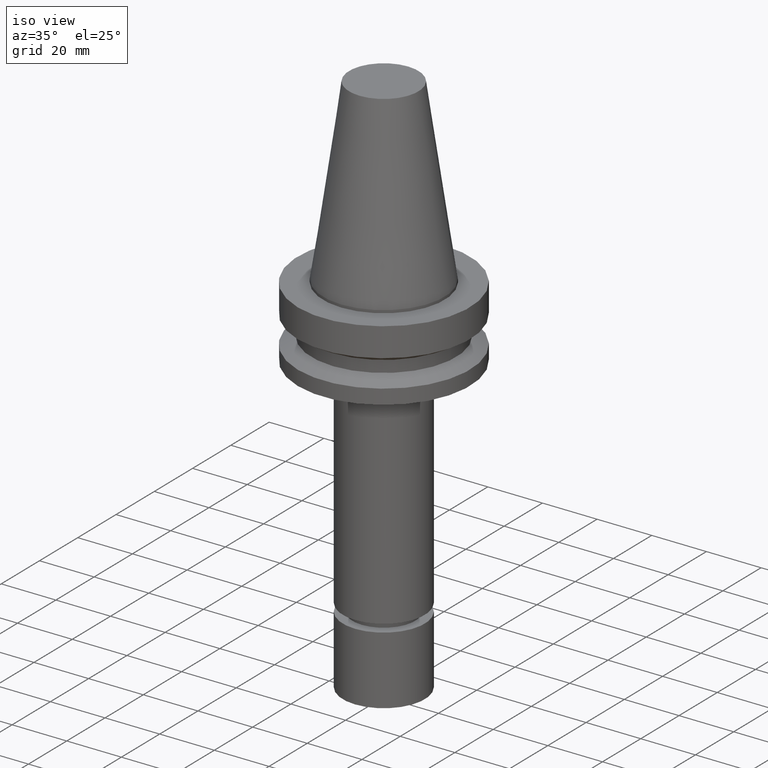
[diagram: clean part render]
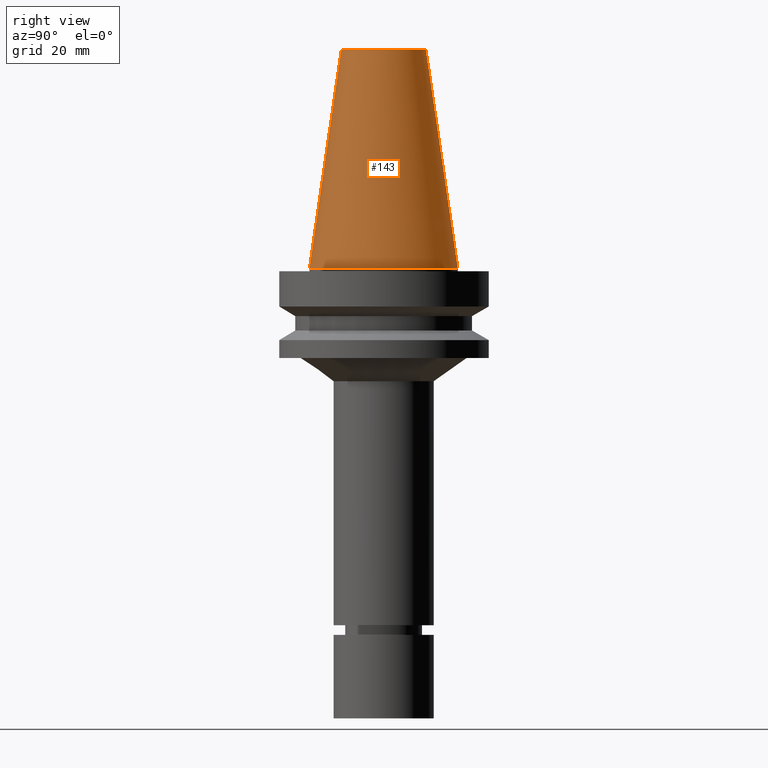
[diagram: tour spotlight — one face highlighted and labeled with its STEP entity id]
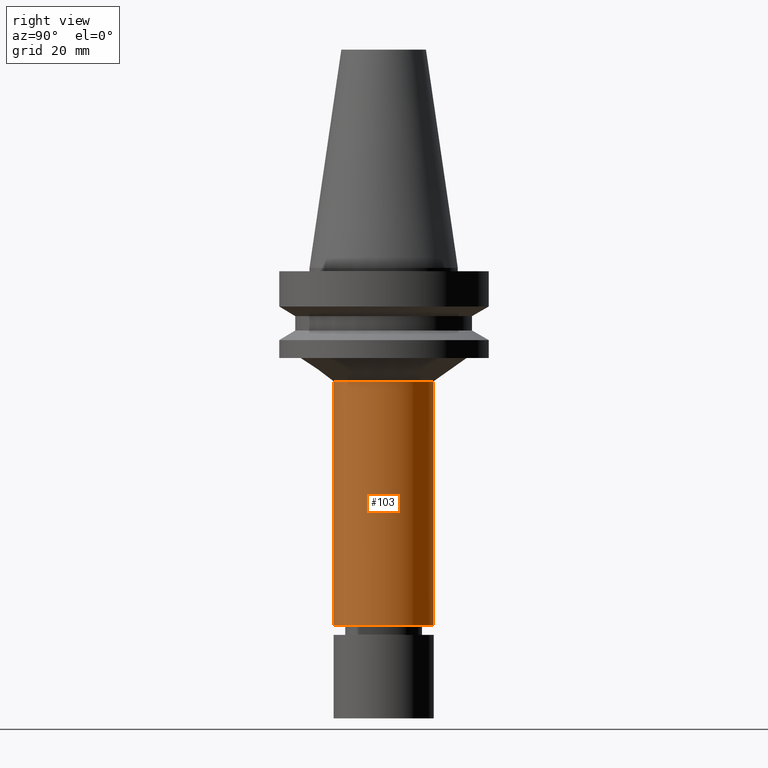
[diagram: tour spotlight — one face highlighted and labeled with its STEP entity id]
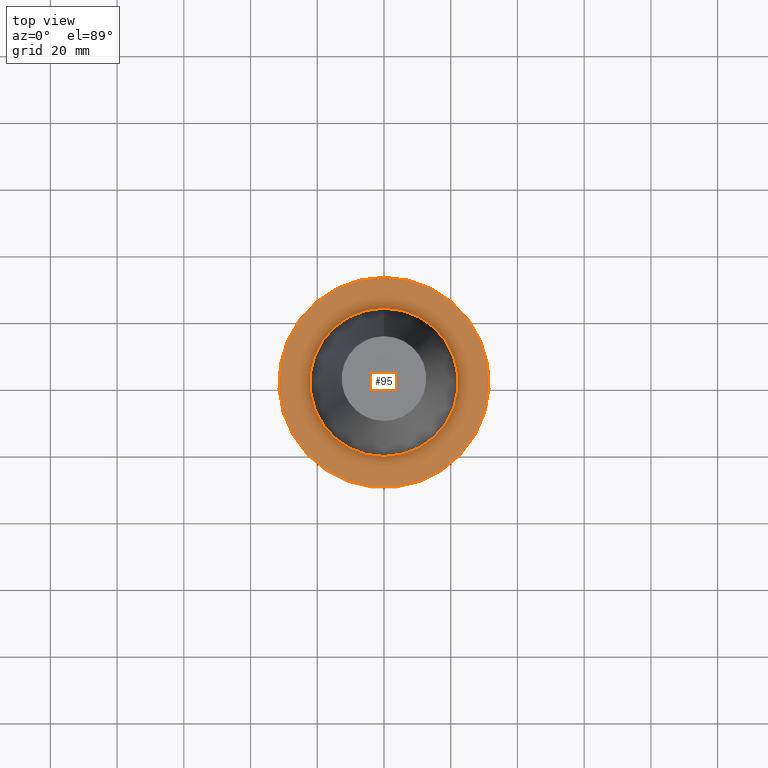
[diagram: tour spotlight — one face highlighted and labeled with its STEP entity id]
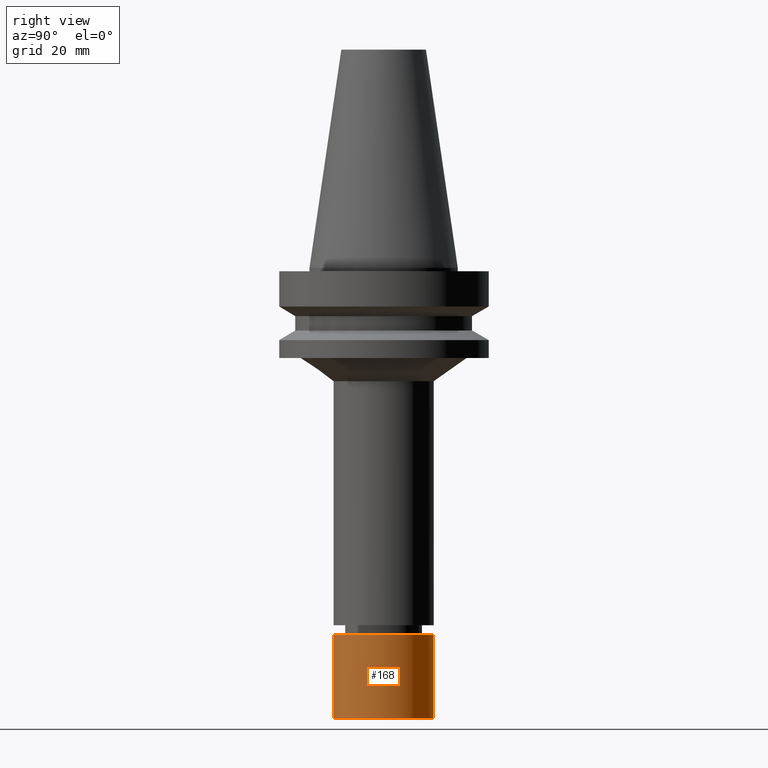
[diagram: tour spotlight — one face highlighted and labeled with its STEP entity id]
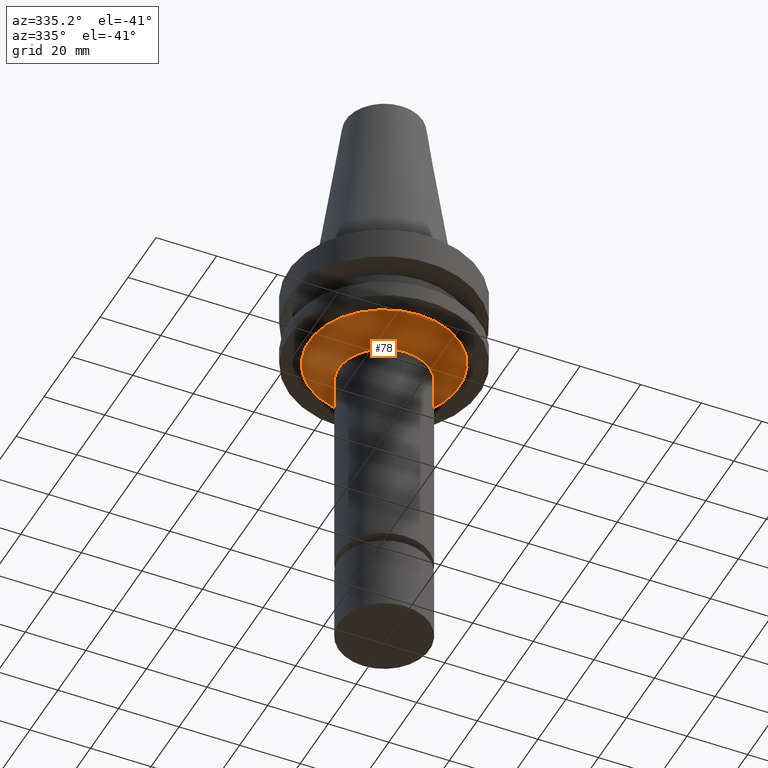
[diagram: tour spotlight — one face highlighted and labeled with its STEP entity id]
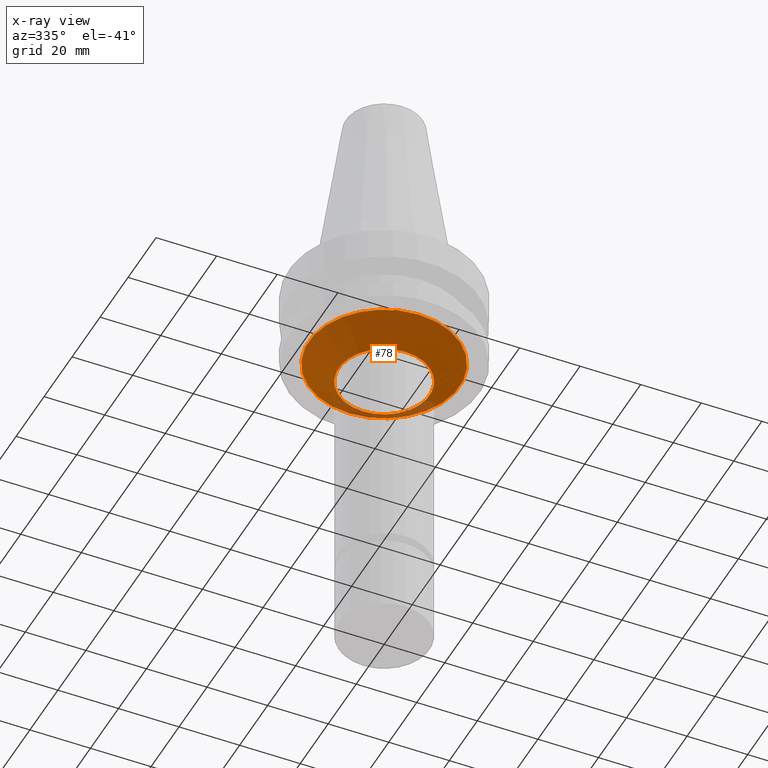
[diagram: x-ray of the same camera — body ghosted, this tour face saturated]
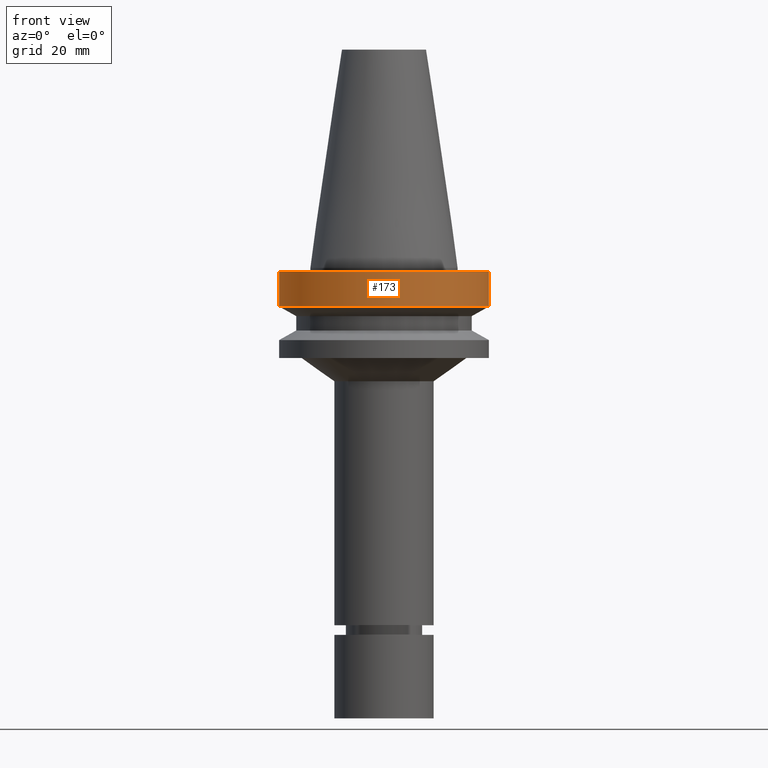
[diagram: tour spotlight — one face highlighted and labeled with its STEP entity id]
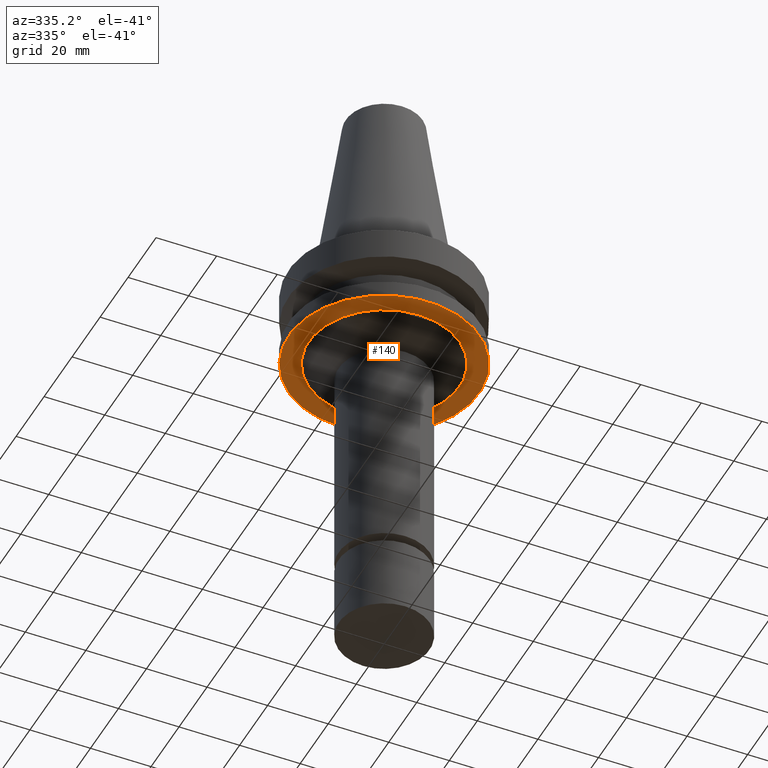
[diagram: tour spotlight — one face highlighted and labeled with its STEP entity id]
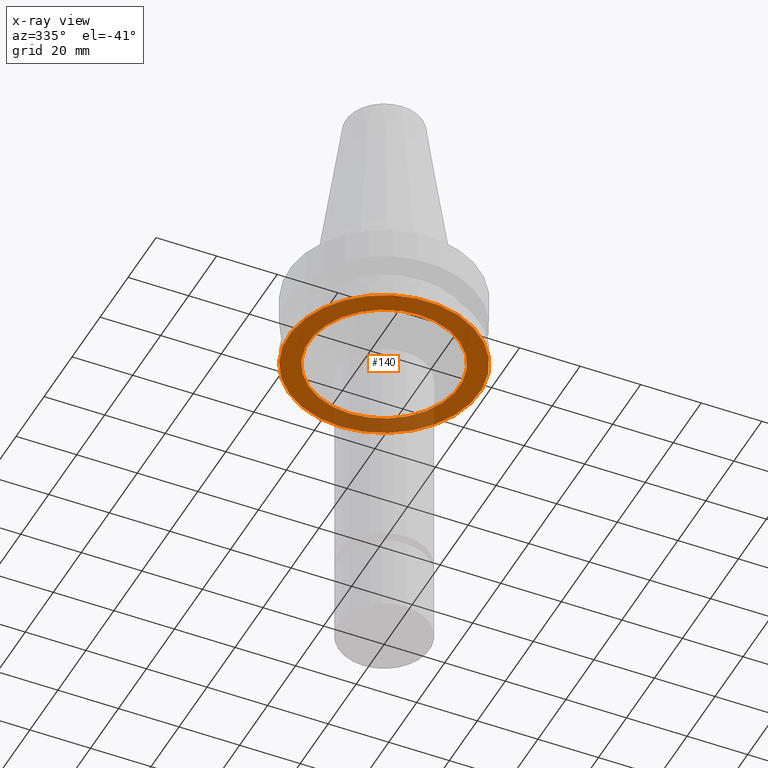
[diagram: x-ray of the same camera — body ghosted, this tour face saturated]
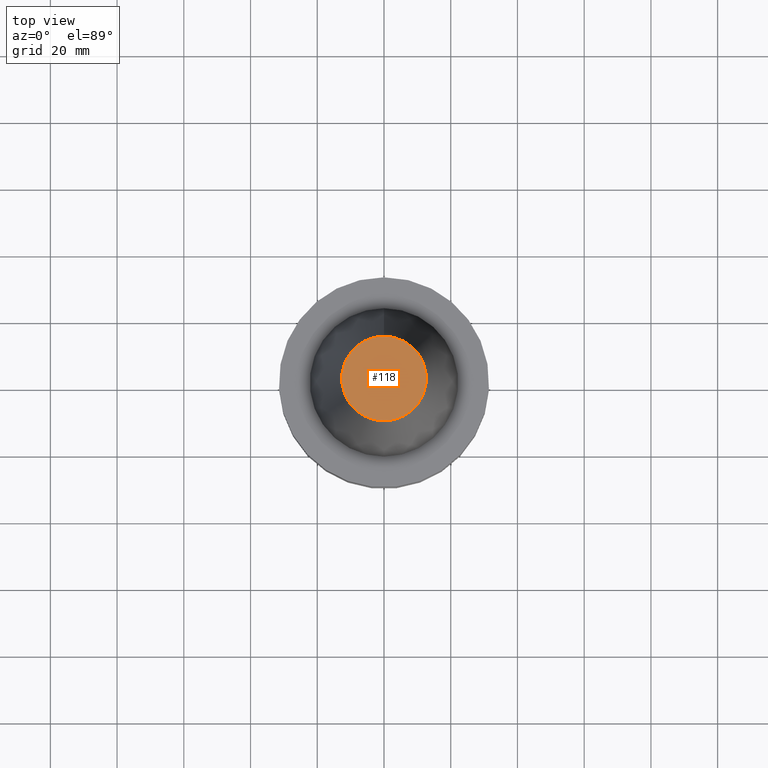
[diagram: tour spotlight — one face highlighted and labeled with its STEP entity id]
A machine part: a face-by-face anatomy tour. The part has 21 B-rep faces; the first image is the clean iso view, then the 8 largest visible faces are spotlighted one at a time (largest first), each with its STEP entity span.

Face 1 — right view, entity #143. In plain terms, the highlighted conical surface has half-angle 8.297 deg.
Definition (entity closure, byte-faithful):
#90=EDGE_CURVE('Unnamed[1]',#224,#224,#225,.T.);
#143=ADVANCED_FACE('Unnamed[1]',(#303,#304),#305,.T.);
#145=EDGE_CURVE('Unnamed[1]',#307,#307,#308,.T.);
#224=VERTEX_POINT('',#406);
#225=CIRCLE('',#407,12.6875000000001);
#303=FACE_BOUND('',#503,.T.);
#304=FACE_BOUND('',#504,.T.);
#305=CONICAL_SURFACE('',#505,17.45625,0.144812498238936);
#307=VERTEX_POINT('',#508);
#308=CIRCLE('',#509,22.225);
#406=CARTESIAN_POINT('',(-4.00459503321185E-015,12.6875000000002,65.4000000000001));
#407=AXIS2_PLACEMENT_3D('',#606,#607,#608);
#503=EDGE_LOOP('',(#691));
#504=EDGE_LOOP('',(#692));
#505=AXIS2_PLACEMENT_3D('',#693,#694,#695);
#508=CARTESIAN_POINT('',(1.71319921032766E-029,22.2250000000001,-2.8153873565375E-013));
#509=AXIS2_PLACEMENT_3D('',#696,#697,#698);
#606=CARTESIAN_POINT('',(-4.00459503321185E-015,7.70742188944467E-014,65.4000000000001));
#607=DIRECTION('',(6.12323399573677E-017,-9.41263592148422E-017,-1.0));
#608=DIRECTION('',(9.36424495623502E-034,1.0,-9.41263592148422E-017));
#691=ORIENTED_EDGE('',*,*,#145,.F.);
#692=ORIENTED_EDGE('',*,*,#90,.T.);
#693=CARTESIAN_POINT('',(-2.00229751660592E-015,7.39962869481213E-014,32.6999999999999));
#694=DIRECTION('',(6.12323399573677E-017,-9.41263592148422E-017,-1.0));
#695=DIRECTION('',(9.36424495623503E-034,1.0,-9.41263592148422E-017));
#696=CARTESIAN_POINT('',(1.74032777401202E-029,7.0918355001796E-014,-2.8421709430404E-013));
#697=DIRECTION('',(6.12323399573677E-017,-9.41263592148422E-017,-1.0));
#698=DIRECTION('',(9.36424495623503E-034,1.0,-9.41263592148422E-017));

Face 2 — right view, entity #103. In plain terms, the highlighted cylindrical surface (bore or boss wall) has radius 15 mm, axis along (0, -0, -1).
Definition (entity closure, byte-faithful):
#80=EDGE_CURVE('Unnamed[1]',#209,#209,#210,.T.);
#103=ADVANCED_FACE('Unnamed[1]',(#242,#243),#244,.T.);
#152=EDGE_CURVE('Unnamed[1]',#318,#318,#319,.T.);
#209=VERTEX_POINT('',#387);
#210=CIRCLE('',#388,15.0000000000004);
#242=FACE_BOUND('',#428,.T.);
#243=FACE_BOUND('',#429,.T.);
#244=CYLINDRICAL_SURFACE('',#430,15.0000000000002);
#318=VERTEX_POINT('',#522);
#319=CIRCLE('',#523,15.0);
#387=CARTESIAN_POINT('',(2.07973442388956E-015,15.0000000000005,-33.9646406676204));
#388=AXIS2_PLACEMENT_3D('',#589,#590,#591);
#428=EDGE_LOOP('',(#623));
#429=EDGE_LOOP('',(#624));
#430=AXIS2_PLACEMENT_3D('',#625,#626,#627);
#522=CARTESIAN_POINT('',(6.55798360943403E-015,15.0000000000001,-107.099999999999));
#523=AXIS2_PLACEMENT_3D('',#708,#709,#710);
#589=CARTESIAN_POINT('',(2.07973442388956E-015,6.77213870337125E-014,-33.9646406676204));
#590=DIRECTION('',(6.12323399573677E-017,-9.41263592148422E-017,-1.0));
#591=DIRECTION('',(9.36424495623503E-034,1.0,-9.41263592148422E-017));
#623=ORIENTED_EDGE('',*,*,#152,.F.);
#624=ORIENTED_EDGE('',*,*,#80,.T.);
#625=CARTESIAN_POINT('',(4.3188590166618E-015,6.42794044817995E-014,-70.5323203338098));
#626=DIRECTION('',(6.12323399573677E-017,-9.41263592148422E-017,-1.0));
#627=DIRECTION('',(9.364244956235E-034,1.0,-9.41263592148422E-017));
#708=CARTESIAN_POINT('',(6.55798360943403E-015,6.08374219298865E-014,-107.099999999999));
#709=DIRECTION('',(6.12323399573677E-017,-9.41263592148422E-017,-1.0));
#710=DIRECTION('',(9.36424495623502E-034,1.0,-9.41263592148422E-017));

Face 3 — top view, entity #95. In plain terms, the highlighted planar face has unit normal (-0, -0, 1).
Definition (entity closure, byte-faithful):
#75=EDGE_CURVE('Unnamed[1]',#201,#201,#202,.T.);
#95=ADVANCED_FACE('Unnamed[1]',(#231,#232),#233,.T.);
#178=EDGE_CURVE('Unnamed[1]',#359,#359,#360,.T.);
#201=VERTEX_POINT('',#377);
#202=CIRCLE('',#378,22.225);
#231=FACE_OUTER_BOUND('',#415,.T.);
#232=FACE_BOUND('',#416,.T.);
#233=PLANE('',#417);
#359=VERTEX_POINT('',#573);
#360=CIRCLE('',#574,31.4999999999996);
#377=CARTESIAN_POINT('',(6.12323399573622E-017,22.2250000000001,-0.999999999999912));
#378=AXIS2_PLACEMENT_3D('',#580,#581,#582);
#415=EDGE_LOOP('',(#613));
#416=EDGE_LOOP('',(#614));
#417=AXIS2_PLACEMENT_3D('',#615,#616,#617);
#573=CARTESIAN_POINT('',(6.12323399573568E-017,31.4999999999997,-0.999999999999825));
#574=AXIS2_PLACEMENT_3D('',#755,#756,#757);
#580=CARTESIAN_POINT('',(6.12323399573624E-017,7.08242286425812E-014,-0.999999999999915));
#581=DIRECTION('',(6.12323399573677E-017,-9.41263592148422E-017,-1.0));
#582=DIRECTION('',(9.36424495623503E-034,1.0,-9.41263592148422E-017));
#613=ORIENTED_EDGE('',*,*,#178,.F.);
#614=ORIENTED_EDGE('',*,*,#75,.T.);
#615=CARTESIAN_POINT('',(6.12323399573595E-017,26.8624999999999,-0.999999999999869));
#616=DIRECTION('',(-6.12323399573677E-017,-9.35138060429241E-015,1.0));
#617=DIRECTION('',(5.77434068963536E-031,-1.0,-9.35138060429241E-015));
#755=CARTESIAN_POINT('',(6.12323399573572E-017,7.08242286425812E-014,-0.999999999999829));
#756=DIRECTION('',(6.12323399573677E-017,-9.41263592148422E-017,-1.0));
#757=DIRECTION('',(9.36424495623503E-034,1.0,-9.41263592148422E-017));

Face 4 — right view, entity #168. In plain terms, the highlighted cylindrical surface (bore or boss wall) has radius 15 mm, axis along (0, -0, -1).
Definition (entity closure, byte-faithful):
#137=EDGE_CURVE('Unnamed[1]',#294,#294,#295,.T.);
#150=EDGE_CURVE('Unnamed[1]',#315,#315,#316,.T.);
#168=ADVANCED_FACE('Unnamed[1]',(#342,#343),#344,.T.);
#294=VERTEX_POINT('',#492);
#295=CIRCLE('',#493,14.9999999999999);
#315=VERTEX_POINT('',#518);
#316=CIRCLE('',#519,15.0);
#342=FACE_BOUND('',#552,.T.);
#343=FACE_BOUND('',#553,.T.);
#344=CYLINDRICAL_SURFACE('',#554,14.9999999999999);
#492=CARTESIAN_POINT('',(8.26636589424463E-015,15.0,-135.0));
#493=AXIS2_PLACEMENT_3D('',#681,#682,#683);
#518=CARTESIAN_POINT('',(6.73555739531044E-015,15.0,-110.0));
#519=AXIS2_PLACEMENT_3D('',#705,#706,#707);
#552=EDGE_LOOP('',(#735));
#553=EDGE_LOOP('',(#736));
#554=AXIS2_PLACEMENT_3D('',#737,#738,#739);
#681=CARTESIAN_POINT('',(8.26636589424463E-015,5.82112965077923E-014,-135.0));
#682=DIRECTION('',(6.12323399573677E-017,-9.41263592148422E-017,-1.0));
#683=DIRECTION('',(9.36424495623502E-034,1.0,-9.41263592148422E-017));
#705=CARTESIAN_POINT('',(6.73555739531044E-015,6.05644554881634E-014,-110.0));
#706=DIRECTION('',(6.12323399573677E-017,-9.41263592148422E-017,-1.0));
#707=DIRECTION('',(9.36424495623502E-034,1.0,-9.41263592148422E-017));
#735=ORIENTED_EDGE('',*,*,#137,.F.);
#736=ORIENTED_EDGE('',*,*,#150,.T.);
#737=CARTESIAN_POINT('',(7.50096164477754E-015,5.93878759979778E-014,-122.5));
#738=DIRECTION('',(6.12323399573676E-017,-9.41263592148422E-017,-1.0));
#739=DIRECTION('',(9.364244956235E-034,1.0,-9.41263592148422E-017));

Face 5 — auxiliary view, entity #78. An x-ray twin of the same camera follows (body ghosted, this face saturated) — the face is partly hidden behind the body. In plain terms, the highlighted conical surface has half-angle 54.789 deg.
Definition (entity closure, byte-faithful):
#78=ADVANCED_FACE('Unnamed[1]',(#205,#206),#207,.T.);
#80=EDGE_CURVE('Unnamed[1]',#209,#209,#210,.T.);
#105=EDGE_CURVE('Unnamed[1]',#246,#246,#247,.T.);
#205=FACE_BOUND('',#382,.T.);
#206=FACE_BOUND('',#383,.T.);
#207=CONICAL_SURFACE('',#384,19.9344124647526,0.956240827688237);
#209=VERTEX_POINT('',#387);
#210=CIRCLE('',#388,15.0000000000004);
#246=VERTEX_POINT('',#433);
#247=CIRCLE('',#434,24.8688249295048);
#382=EDGE_LOOP('',(#584));
#383=EDGE_LOOP('',(#585));
#384=AXIS2_PLACEMENT_3D('',#586,#587,#588);
#387=CARTESIAN_POINT('',(2.07973442388956E-015,15.0000000000005,-33.9646406676204));
#388=AXIS2_PLACEMENT_3D('',#589,#590,#591);
#433=CARTESIAN_POINT('',(1.65327317884891E-015,24.8688249295049,-26.9999999999998));
#434=AXIS2_PLACEMENT_3D('',#628,#629,#630);
#584=ORIENTED_EDGE('',*,*,#80,.F.);
#585=ORIENTED_EDGE('',*,*,#105,.T.);
#586=CARTESIAN_POINT('',(1.86650380136924E-015,6.80491651683539E-014,-30.4823203338101));
#587=DIRECTION('',(-6.12323399573677E-017,9.41263592148422E-017,1.0));
#588=DIRECTION('',(9.36424495623502E-034,1.0,-9.41263592148422E-017));
#589=CARTESIAN_POINT('',(2.07973442388956E-015,6.77213870337125E-014,-33.9646406676204));
#590=DIRECTION('',(6.12323399573677E-017,-9.41263592148422E-017,-1.0));
#591=DIRECTION('',(9.36424495623503E-034,1.0,-9.41263592148422E-017));
#628=CARTESIAN_POINT('',(1.65327317884891E-015,6.83769433029953E-014,-26.9999999999998));
#629=DIRECTION('',(6.12323399573677E-017,-9.41263592148422E-017,-1.0));
#630=DIRECTION('',(9.36424495623501E-034,1.0,-9.41263592148422E-017));

Face 6 — front view, entity #173. In plain terms, the highlighted cylindrical surface (bore or boss wall) has radius 31.5 mm, axis along (0, -0, -1).
Definition (entity closure, byte-faithful):
#92=EDGE_CURVE('Unnamed[1]',#227,#227,#228,.T.);
#173=ADVANCED_FACE('Unnamed[1]',(#350,#351),#352,.T.);
#178=EDGE_CURVE('Unnamed[1]',#359,#359,#360,.T.);
#227=VERTEX_POINT('',#410);
#228=CIRCLE('',#411,31.5000000000003);
#350=FACE_BOUND('',#562,.T.);
#351=FACE_BOUND('',#563,.T.);
#352=CYLINDRICAL_SURFACE('',#564,31.5);
#359=VERTEX_POINT('',#573);
#360=CIRCLE('',#574,31.4999999999996);
#410=CARTESIAN_POINT('',(7.08182973902924E-016,31.5000000000004,-11.5655056526664));
#411=AXIS2_PLACEMENT_3D('',#609,#610,#611);
#562=EDGE_LOOP('',(#744));
#563=EDGE_LOOP('',(#745));
#564=AXIS2_PLACEMENT_3D('',#746,#747,#748);
#573=CARTESIAN_POINT('',(6.12323399573568E-017,31.4999999999997,-0.999999999999825));
#574=AXIS2_PLACEMENT_3D('',#755,#756,#757);
#609=CARTESIAN_POINT('',(7.08182973902924E-016,6.98297360622318E-014,-11.5655056526664));
#610=DIRECTION('',(6.12323399573677E-017,-9.41263592148422E-017,-1.0));
#611=DIRECTION('',(9.364244956235E-034,1.0,-9.41263592148422E-017));
#744=ORIENTED_EDGE('',*,*,#92,.F.);
#745=ORIENTED_EDGE('',*,*,#178,.T.);
#746=CARTESIAN_POINT('',(3.84707656930141E-016,7.03269823524065E-014,-6.28275282633309));
#747=DIRECTION('',(6.12323399573676E-017,-9.41263592148422E-017,-1.0));
#748=DIRECTION('',(9.36424495623499E-034,1.0,-9.41263592148422E-017));
#755=CARTESIAN_POINT('',(6.12323399573572E-017,7.08242286425812E-014,-0.999999999999829));
#756=DIRECTION('',(6.12323399573677E-017,-9.41263592148422E-017,-1.0));
#757=DIRECTION('',(9.36424495623503E-034,1.0,-9.41263592148422E-017));

Face 7 — auxiliary view, entity #140. An x-ray twin of the same camera follows (body ghosted, this face saturated) — the face is partly hidden behind the body. In plain terms, the highlighted planar face has unit normal (0, 0, -1).
Definition (entity closure, byte-faithful):
#105=EDGE_CURVE('Unnamed[1]',#246,#246,#247,.T.);
#109=EDGE_CURVE('Unnamed[1]',#252,#252,#253,.T.);
#140=ADVANCED_FACE('Unnamed[1]',(#298,#299),#300,.T.);
#246=VERTEX_POINT('',#433);
#247=CIRCLE('',#434,24.8688249295048);
#252=VERTEX_POINT('',#441);
#253=CIRCLE('',#442,31.5000000000003);
#298=FACE_BOUND('',#497,.T.);
#299=FACE_OUTER_BOUND('',#498,.T.);
#300=PLANE('',#499);
#433=CARTESIAN_POINT('',(1.65327317884891E-015,24.8688249295049,-26.9999999999998));
#434=AXIS2_PLACEMENT_3D('',#628,#629,#630);
#441=CARTESIAN_POINT('',(1.65327317884891E-015,31.5000000000004,-26.9999999999998));
#442=AXIS2_PLACEMENT_3D('',#634,#635,#636);
#497=EDGE_LOOP('',(#685));
#498=EDGE_LOOP('',(#686));
#499=AXIS2_PLACEMENT_3D('',#687,#688,#689);
#628=CARTESIAN_POINT('',(1.65327317884891E-015,6.83769433029953E-014,-26.9999999999998));
#629=DIRECTION('',(6.12323399573677E-017,-9.41263592148422E-017,-1.0));
#630=DIRECTION('',(9.36424495623501E-034,1.0,-9.41263592148422E-017));
#634=CARTESIAN_POINT('',(1.65327317884891E-015,6.83769433029953E-014,-26.9999999999998));
#635=DIRECTION('',(6.12323399573677E-017,-9.41263592148422E-017,-1.0));
#636=DIRECTION('',(9.36424495623501E-034,1.0,-9.41263592148422E-017));
#685=ORIENTED_EDGE('',*,*,#105,.F.);
#686=ORIENTED_EDGE('',*,*,#109,.T.);
#687=CARTESIAN_POINT('',(1.65327317884891E-015,28.1844124647527,-26.9999999999998));
#688=DIRECTION('',(6.12323399573677E-017,3.3370204481144E-015,-1.0));
#689=DIRECTION('',(-2.09160723254397E-031,1.0,3.3370204481144E-015));

Face 8 — top view, entity #118. In plain terms, the highlighted planar face has unit normal (-0, 0, 1).
Definition (entity closure, byte-faithful):
#90=EDGE_CURVE('Unnamed[1]',#224,#224,#225,.T.);
#118=ADVANCED_FACE('Unnamed[1]',(#266),#267,.T.);
#224=VERTEX_POINT('',#406);
#225=CIRCLE('',#407,12.6875000000001);
#266=FACE_OUTER_BOUND('',#458,.T.);
#267=PLANE('',#459);
#406=CARTESIAN_POINT('',(-4.00459503321185E-015,12.6875000000002,65.4000000000001));
#407=AXIS2_PLACEMENT_3D('',#606,#607,#608);
#458=EDGE_LOOP('',(#650));
#459=AXIS2_PLACEMENT_3D('',#651,#652,#653);
#606=CARTESIAN_POINT('',(-4.00459503321185E-015,7.70742188944467E-014,65.4000000000001));
#607=DIRECTION('',(6.12323399573677E-017,-9.41263592148422E-017,-1.0));
#608=DIRECTION('',(9.36424495623502E-034,1.0,-9.41263592148422E-017));
#650=ORIENTED_EDGE('',*,*,#90,.F.);
#651=CARTESIAN_POINT('',(-4.00459503321185E-015,6.34375000000014,65.4000000000001));
#652=DIRECTION('',(-6.12323399573677E-017,9.97602686800683E-016,1.0));
#653=DIRECTION('',(-5.62583941297938E-032,-1.0,9.97602686800683E-016));